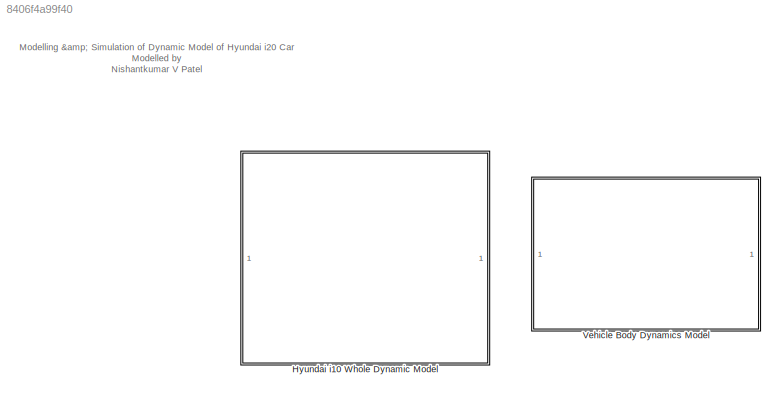
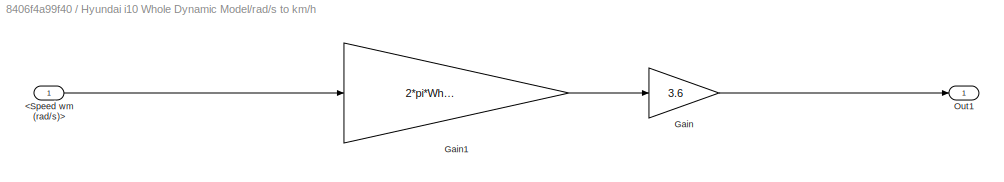
MODEL slx_8406f4a99f40
KIND model
CONFIG AbsTol = auto
CONFIG EnableMultiTasking = off
CONFIG FixedStep = auto
CONFIG MaxStep = auto
CONFIG MinStep = auto
CONFIG RelTol = 1e-2
CONFIG SampleTimeConstraint = Unconstrained
CONFIG SolverName = VariableStepAuto
CONFIG StartTime = 0.0
CONFIG StopTime = inf
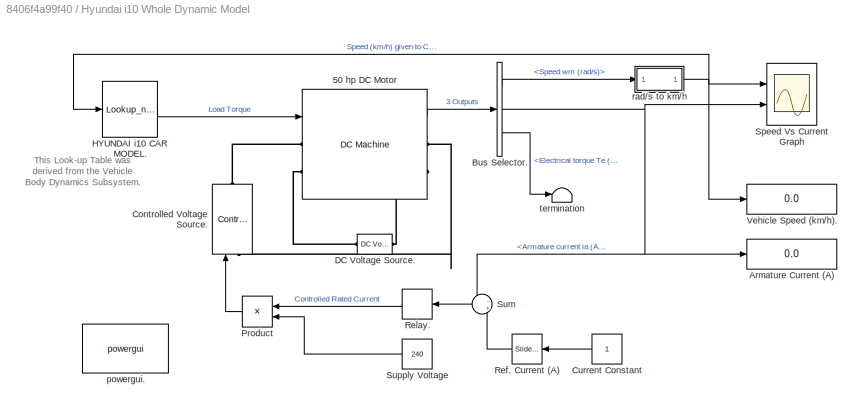
BLOCK [SubSystem] Hyundai i10 Whole Dynamic Model
  Ports = []
  RequestExecContextInheritance = off
BLOCK [Reference] Hyundai i10 Whole Dynamic Model/50 hp DC Motor  REF=spsDCMachineLib/DC Machine
  Ports = [1, 1, 0, 0, 0, 2, 2]
  SourceBlock = spsDCMachineLib/DC Machine
  SourceProductBaseCode = PS
  SourceType = DC machine
BLOCK [Display] Hyundai i10 Whole Dynamic Model/Armature Current (A)
  Decimation = 1
  Ports = [1]
BLOCK [BusSelector] Hyundai i10 Whole Dynamic Model/Bus Selector.
  OutputSignals = Speed wm (rad/s),Armature current ia (A),Electrical torque Te (n m)
  Ports = [1, 3]
BLOCK [Reference] Hyundai i10 Whole Dynamic Model/Controlled Voltage Source.  REF=spsControlledVoltageSourceLib/Controlled Voltage Source
  Ports = [1, 0, 0, 0, 0, 1, 1]
  SourceBlock = spsControlledVoltageSourceLib/Controlled Voltage Source
  SourceProductBaseCode = PS
  SourceType = Controlled Voltage Source
BLOCK [Constant] Hyundai i10 Whole Dynamic Model/Current Constant
  NameLocation = top
BLOCK [Reference] Hyundai i10 Whole Dynamic Model/DC Voltage Source.  REF=spsDCVoltageSourceLib/DC Voltage Source
  NameLocation = right
  Ports = [0, 0, 0, 0, 0, 1, 1]
  SourceBlock = spsDCVoltageSourceLib/DC Voltage Source
  SourceProductBaseCode = PS
  SourceType = DC Voltage Source
BLOCK [Lookup_n-D] Hyundai i10 Whole Dynamic Model/HYUNDAI i10 CAR MODEL.
  BreakpointsForDimension1 = [0 22.61 31.98 39.16 45.22 50.56 55.38 59.82 64 67.83 71.5 75 78.32 81.52 84.6 87.57 90.44 93.22 95.93 101.1]
  InputPortMap = u0
  InternalRulePriority = Speed
  NumberOfTableDimensions = 1
  Ports = [1, 1]
  RndMeth = Simplest
  Table = [0 5 10 15 20 25 30 35 40 45 50 55 60 65 70 75 80 85 90 100]
BLOCK [Product] Hyundai i10 Whole Dynamic Model/Product
  NameLocation = top
  Ports = [2, 1]
BLOCK [Reference] Hyundai i10 Whole Dynamic Model/Ref. Current (A)   REF=simulink/Math
Operations/Slider
Gain
  NameLocation = top
  Ports = [1, 1]
  SourceBlock = simulink/Math\nOperations/Slider\nGain
  SourceProductBaseCode = SL
  SourceType = Slider Gain
BLOCK [Relay] Hyundai i10 Whole Dynamic Model/Relay.
  NameLocation = top
  OffSwitchValue = -2
  OnSwitchValue = 2
BLOCK [Scope] Hyundai i10 Whole Dynamic Model/Speed Vs Current Graph
  Floating = off
  NumInputPorts = 2
  Ports = [2]
  ScopeSpecificationString = Simulink.scopes.TimeScopeBlockCfg('CurrentConfiguration', extmgr.ConfigurationSet(extmgr.Configuration('Core','General UI',true),extmgr.Configuration('Core','Source UI',true),extmgr.Configuration('Sources','WiredSimulink',true,'DataLoggingVariableName','ScopeData1'),extmgr.Configuration('Visuals','Time Domain',true,'SerializedDisplays',{struct('MinYLimReal','0','MaxYLimReal','180','YLabelReal','',...<+1568ch>
BLOCK [Sum] Hyundai i10 Whole Dynamic Model/Sum
  Inputs = -+
  NameLocation = top
  Ports = [2, 1]
BLOCK [Constant] Hyundai i10 Whole Dynamic Model/Supply Voltage
  NameLocation = top
  Value = 240
BLOCK [Display] Hyundai i10 Whole Dynamic Model/Vehicle Speed (km//h).
  Decimation = 1
  Ports = [1]
BLOCK [Reference] Hyundai i10 Whole Dynamic Model/powergui.  REF=spspowerguiLib/powergui
  Ports = []
  Priority = 1
  SourceBlock = spspowerguiLib/powergui
  SourceProductBaseCode = PS
  SourceType = PSB option menu block
BLOCK [SubSystem] Hyundai i10 Whole Dynamic Model/rad//s to km//h
  Ports = [1, 1]
  RequestExecContextInheritance = off
BLOCK [Inport] Hyundai i10 Whole Dynamic Model/rad//s to km//h/<Speed wm (rad//s)>
BLOCK [Gain] Hyundai i10 Whole Dynamic Model/rad//s to km//h/Gain
  Gain = 3.6
BLOCK [Gain] Hyundai i10 Whole Dynamic Model/rad//s to km//h/Gain1
  Gain = 2*pi*Wheel_Radius
BLOCK [Outport] Hyundai i10 Whole Dynamic Model/rad//s to km//h/Out1
BLOCK [Terminator] Hyundai i10 Whole Dynamic Model/termination
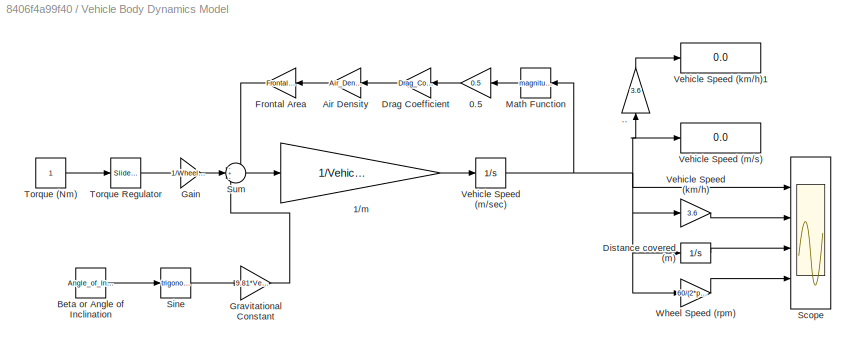
BLOCK [SubSystem] Vehicle Body Dynamics Model
  Ports = []
  RequestExecContextInheritance = off
BLOCK [Gain] Vehicle Body Dynamics Model/..
  Gain = 3.6
  NameLocation = right
BLOCK [Gain] Vehicle Body Dynamics Model/0.5
  Gain = 0.5
  NameLocation = top
BLOCK [Gain] Vehicle Body Dynamics Model/1//m
  Gain = 1/Vehicle_Mass
BLOCK [Gain] Vehicle Body Dynamics Model/Air Density
  Gain = Air_Density
  NameLocation = top
BLOCK [Constant] Vehicle Body Dynamics Model/Beta or Angle of Inclination
  Value = Angle_of_Inclination
BLOCK [Integrator] Vehicle Body Dynamics Model/Distance covered (m)
  Ports = [1, 1]
BLOCK [Gain] Vehicle Body Dynamics Model/Drag Coefficient
  Gain = Drag_Cofeccient
  NameLocation = top
BLOCK [Gain] Vehicle Body Dynamics Model/Frontal Area
  Gain = Frontal_Area
  NameLocation = top
BLOCK [Gain] Vehicle Body Dynamics Model/Gain
  Gain = 1/Wheel_Radius
BLOCK [Gain] Vehicle Body Dynamics Model/Gravitational Constant
  Gain = 9.81*Vehicle_Mass
BLOCK [Math] Vehicle Body Dynamics Model/Math Function
  NameLocation = top
  Operator = magnitude^2
  Ports = [1, 1]
BLOCK [Scope] Vehicle Body Dynamics Model/Scope
  Floating = off
  NumInputPorts = 4
  Ports = [4]
  ScopeSpecificationString = Simulink.scopes.TimeScopeBlockCfg('CurrentConfiguration', extmgr.ConfigurationSet(extmgr.Configuration('Core','General UI',true),extmgr.Configuration('Core','Source UI',true),extmgr.Configuration('Sources','WiredSimulink',true),extmgr.Configuration('Visuals','Time Domain',true,'SerializedDisplays',{struct('MinYLimReal','-41.94678','MaxYLimReal','223.49166','YLabelReal','','MinYLimMag','0.00000','M...<+1755ch>
BLOCK [Trigonometry] Vehicle Body Dynamics Model/Sine
  Ports = [1, 1]
BLOCK [Sum] Vehicle Body Dynamics Model/Sum
  Inputs = -+-
  Ports = [3, 1]
BLOCK [Constant] Vehicle Body Dynamics Model/Torque (Nm)
BLOCK [Reference] Vehicle Body Dynamics Model/Torque Regulator  REF=simulink/Math
Operations/Slider
Gain
  Ports = [1, 1]
  SourceBlock = simulink/Math\nOperations/Slider\nGain
  SourceProductBaseCode = SL
  SourceType = Slider Gain
BLOCK [Gain] Vehicle Body Dynamics Model/Vehicle Speed (km//h)
  Gain = 3.6
BLOCK [Display] Vehicle Body Dynamics Model/Vehicle Speed (km//h)1
  Decimation = 1
  Ports = [1]
BLOCK [Display] Vehicle Body Dynamics Model/Vehicle Speed (m//s)
  Decimation = 1
  Ports = [1]
BLOCK [Integrator] Vehicle Body Dynamics Model/Vehicle Speed (m//sec)
  Ports = [1, 1]
BLOCK [Gain] Vehicle Body Dynamics Model/Wheel Speed (rpm)
  Gain = 60/(2*pi*Wheel_Radius)
ANNOTATION (root): Modelling & Simulation of Dynamic Model of Hyundai i20 Car Modelled by Nishantkumar V Patel
ANNOTATION Hyundai i10 Whole Dynamic Model: This Look-up Table was derived from the Vehicle Body Dynamics Subsystem.
LINE Hyundai i10 Whole Dynamic Model/50 hp DC Motor:1 -> Hyundai i10 Whole Dynamic Model/Bus Selector.:1
LINE Hyundai i10 Whole Dynamic Model/Bus Selector.:1 -> Hyundai i10 Whole Dynamic Model/rad//s to km//h:1
NET Hyundai i10 Whole Dynamic Model/Bus Selector.:2 -> Hyundai i10 Whole Dynamic Model/Armature Current (A):1, Hyundai i10 Whole Dynamic Model/Speed Vs Current Graph:2, Hyundai i10 Whole Dynamic Model/Sum:1
LINE Hyundai i10 Whole Dynamic Model/Bus Selector.:3 -> Hyundai i10 Whole Dynamic Model/termination:1
LINE Hyundai i10 Whole Dynamic Model/Current Constant:1 -> Hyundai i10 Whole Dynamic Model/Ref. Current (A) :1
LINE Hyundai i10 Whole Dynamic Model/HYUNDAI i10 CAR MODEL.:1 -> Hyundai i10 Whole Dynamic Model/50 hp DC Motor:1
LINE Hyundai i10 Whole Dynamic Model/Product:1 -> Hyundai i10 Whole Dynamic Model/Controlled Voltage Source.:1
LINE Hyundai i10 Whole Dynamic Model/Ref. Current (A) :1 -> Hyundai i10 Whole Dynamic Model/Sum:2
LINE Hyundai i10 Whole Dynamic Model/Relay.:1 -> Hyundai i10 Whole Dynamic Model/Product:1
LINE Hyundai i10 Whole Dynamic Model/Sum:1 -> Hyundai i10 Whole Dynamic Model/Relay.:1
LINE Hyundai i10 Whole Dynamic Model/Supply Voltage:1 -> Hyundai i10 Whole Dynamic Model/Product:2
LINE Hyundai i10 Whole Dynamic Model/rad//s to km//h/<Speed wm (rad//s)>:1 -> Hyundai i10 Whole Dynamic Model/rad//s to km//h/Gain1:1
LINE Hyundai i10 Whole Dynamic Model/rad//s to km//h/Gain1:1 -> Hyundai i10 Whole Dynamic Model/rad//s to km//h/Gain:1
LINE Hyundai i10 Whole Dynamic Model/rad//s to km//h/Gain:1 -> Hyundai i10 Whole Dynamic Model/rad//s to km//h/Out1:1
NET Hyundai i10 Whole Dynamic Model/rad//s to km//h:1 -> Hyundai i10 Whole Dynamic Model/HYUNDAI i10 CAR MODEL.:1, Hyundai i10 Whole Dynamic Model/Speed Vs Current Graph:1, Hyundai i10 Whole Dynamic Model/Vehicle Speed (km//h).:1
LINE Vehicle Body Dynamics Model/..:1 -> Vehicle Body Dynamics Model/Vehicle Speed (km//h)1:1
LINE Vehicle Body Dynamics Model/0.5:1 -> Vehicle Body Dynamics Model/Drag Coefficient:1
LINE Vehicle Body Dynamics Model/1//m:1 -> Vehicle Body Dynamics Model/Vehicle Speed (m//sec):1
LINE Vehicle Body Dynamics Model/Air Density:1 -> Vehicle Body Dynamics Model/Frontal Area:1
LINE Vehicle Body Dynamics Model/Beta or Angle of Inclination:1 -> Vehicle Body Dynamics Model/Sine:1
LINE Vehicle Body Dynamics Model/Distance covered (m):1 -> Vehicle Body Dynamics Model/Scope:3
LINE Vehicle Body Dynamics Model/Drag Coefficient:1 -> Vehicle Body Dynamics Model/Air Density:1
LINE Vehicle Body Dynamics Model/Frontal Area:1 -> Vehicle Body Dynamics Model/Sum:1
LINE Vehicle Body Dynamics Model/Gain:1 -> Vehicle Body Dynamics Model/Sum:2
LINE Vehicle Body Dynamics Model/Gravitational Constant:1 -> Vehicle Body Dynamics Model/Sum:3
LINE Vehicle Body Dynamics Model/Math Function:1 -> Vehicle Body Dynamics Model/0.5:1
LINE Vehicle Body Dynamics Model/Sine:1 -> Vehicle Body Dynamics Model/Gravitational Constant:1
LINE Vehicle Body Dynamics Model/Sum:1 -> Vehicle Body Dynamics Model/1//m:1
LINE Vehicle Body Dynamics Model/Torque (Nm):1 -> Vehicle Body Dynamics Model/Torque Regulator:1
LINE Vehicle Body Dynamics Model/Torque Regulator:1 -> Vehicle Body Dynamics Model/Gain:1
LINE Vehicle Body Dynamics Model/Vehicle Speed (km//h):1 -> Vehicle Body Dynamics Model/Scope:2
NET Vehicle Body Dynamics Model/Vehicle Speed (m//sec):1 -> Vehicle Body Dynamics Model/..:1, Vehicle Body Dynamics Model/Distance covered (m):1, Vehicle Body Dynamics Model/Math Function:1, Vehicle Body Dynamics Model/Scope:1, Vehicle Body Dynamics Model/Vehicle Speed (km//h):1, Vehicle Body Dynamics Model/Vehicle Speed (m//s):1, Vehicle Body Dynamics Model/Wheel Speed (rpm):1
LINE Vehicle Body Dynamics Model/Wheel Speed (rpm):1 -> Vehicle Body Dynamics Model/Scope:4
PLINE Hyundai i10 Whole Dynamic Model/50 hp DC Motor:LConn1 -- Hyundai i10 Whole Dynamic Model/Controlled Voltage Source.:RConn1
PLINE Hyundai i10 Whole Dynamic Model/50 hp DC Motor:LConn2 -- Hyundai i10 Whole Dynamic Model/DC Voltage Source.:RConn1
PLINE Hyundai i10 Whole Dynamic Model/50 hp DC Motor:RConn1 -- Hyundai i10 Whole Dynamic Model/Controlled Voltage Source.:LConn1
PLINE Hyundai i10 Whole Dynamic Model/50 hp DC Motor:RConn2 -- Hyundai i10 Whole Dynamic Model/DC Voltage Source.:LConn1
note: NET lines group one-source signal fan-out (src -> all destinations, sorted); 1:1 wires keep LINE
